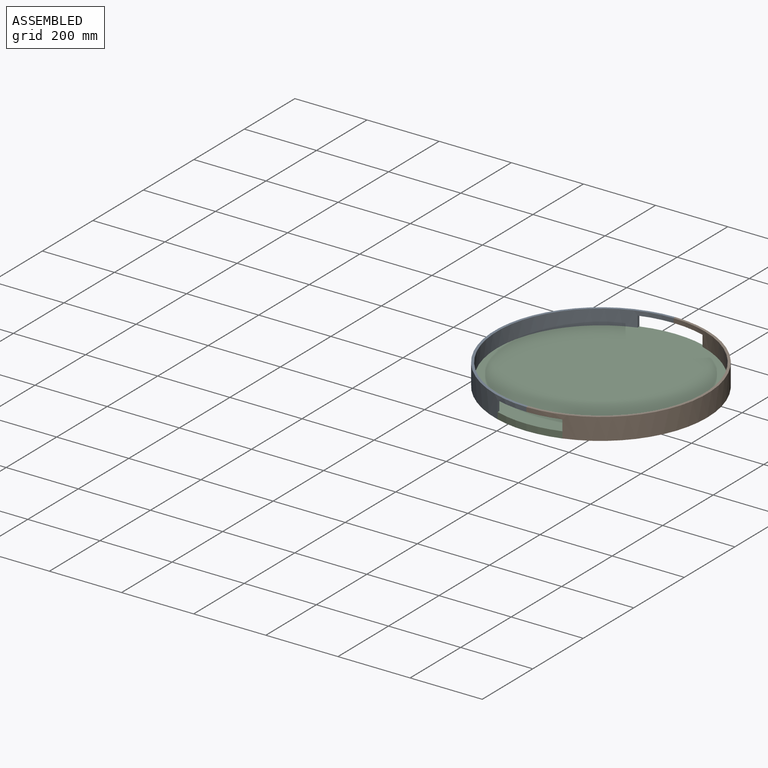
[diagram: assembled view]
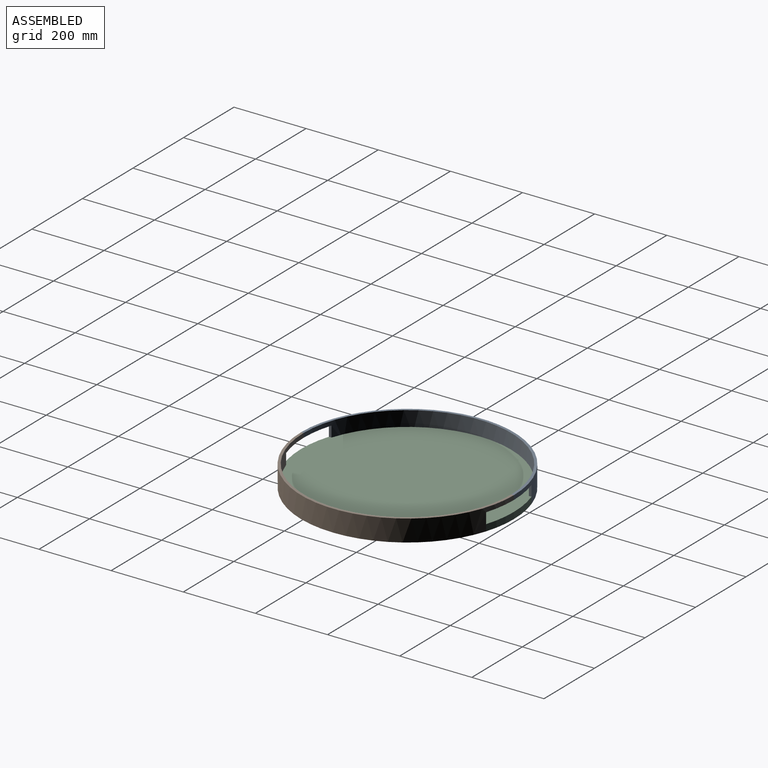
[diagram: assembled view, second angle]
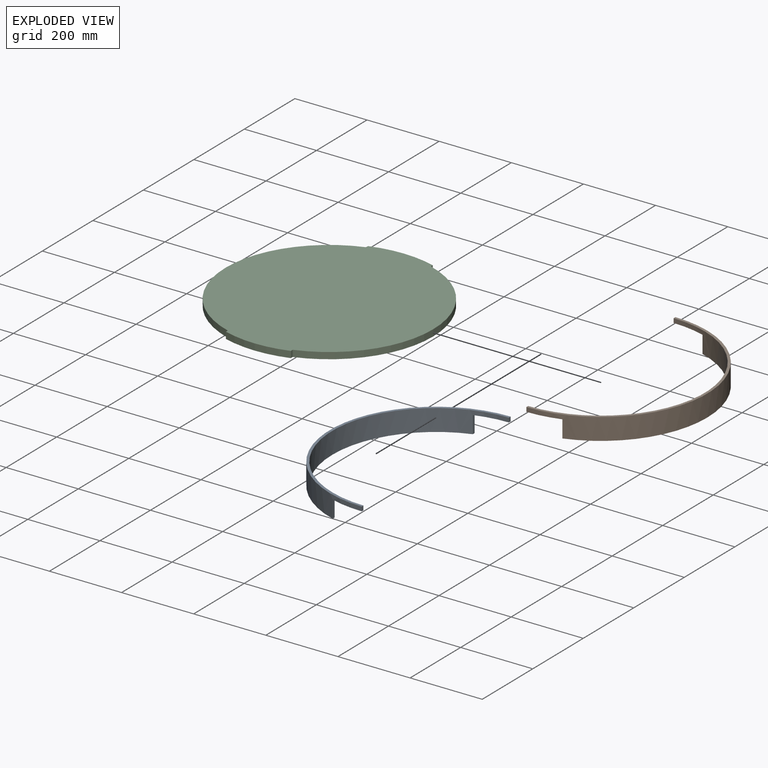
[diagram: exploded view]
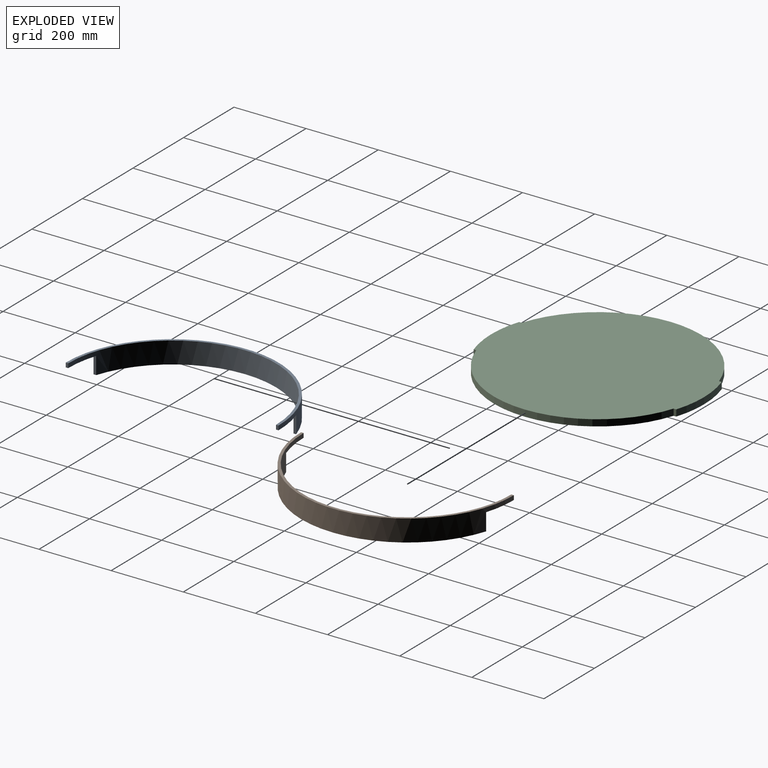
[diagram: exploded view, second angle]
ASSEMBLY  parts=3 mates=3
PART A: 10 faces, bbox 295x590x60 mm
  f0: plane 48x7.36mm, normal (1,0,0), area 353.3mm2, adj f2,f3,f4,f9
  f1: plane 48x7.36mm, normal (1,0,0), area 353.3mm2, adj f2,f3,f4,f7
  f2: plane 561.87x205mm, normal (0,0,-1), area 5129.5mm2, adj f0,f1,f3,f4
  f3: cylinder r=295mm len=590mm, axis (0,0,-1), area 46826.2mm2, adj f0,f1,f2,f5,f6,f7,f8,f9
  f4: cylinder r=288mm len=576mm, axis (0,0,-1), area 45499.5mm2, adj f0,f1,f2,f5,f6,f7,f8,f9
  f5: plane 590x295mm, normal (0,0,1), area 6410.4mm2, adj f3,f4,f6,f8
  f6: plane 12x7mm, normal (1,0,0), area 84mm2, adj f3,f4,f5,f7
  f7: plane 90x21.42mm, normal (0,0,-1), area 640.5mm2, adj f1,f3,f4,f6
  f8: plane 12x7mm, normal (1,0,0), area 84mm2, adj f3,f4,f5,f9
  f9: plane 90x21.42mm, normal (0,0,-1), area 640.5mm2, adj f0,f3,f4,f8
PART B: same geometry as A
PART C: 10 faces, bbox 576x590x18 mm
  f0: cylinder r=295mm len=180mm, axis (0,0,-1), area 3292.5mm2, adj f1,f2,f4,f7
  f1: plane 590x576mm, normal (0,0,1), area 263138.1mm2, adj f0,f3,f4,f5,f6,f7,f8,f9
  f2: plane 590x576mm, normal (0,0,-1), area 263138.1mm2, adj f0,f3,f4,f5,f6,f7,f8,f9
  f3: cylinder r=295mm len=180mm, axis (0,0,-1), area 3292.5mm2, adj f1,f2,f5,f9
  f4: plane 18x7.36mm, normal (-1,0,0), area 132.5mm2, adj f0,f1,f2,f6
  f5: plane 18x7.36mm, normal (-1,0,0), area 132.5mm2, adj f1,f2,f3,f6
  f6: cylinder r=288mm len=547.15mm, axis (0,0,1), area 12990.8mm2, adj f1,f2,f4,f5
  f7: plane 18x7.36mm, normal (1,0,0), area 132.5mm2, adj f0,f1,f2,f8
  f8: cylinder r=288mm len=547.15mm, axis (0,0,1), area 12990.8mm2, adj f1,f2,f7,f9
  f9: plane 18x7.36mm, normal (1,0,0), area 132.5mm2, adj f1,f2,f3,f8
PLACE A t=(-329.09,-88.81,124.82)mm fixed
PLACE B rot(axis=(0,0,1),180deg) t=(-329.09,-88.81,124.82)mm
PLACE C t=(-329.09,-88.81,124.82)mm fixed
MATE planar B.f0 <-> C.f9  axis (-1,0,0) through (-239.09,-366.06,148.82)mm
MATE planar C.f8 <-> B.f2  axis (0,0,-1) through (-329.09,-88.81,124.82)mm
MATE cylindrical C.f8 <-> B.f4  axis (0,0,1) through (-329.09,-88.81,133.82)mm
